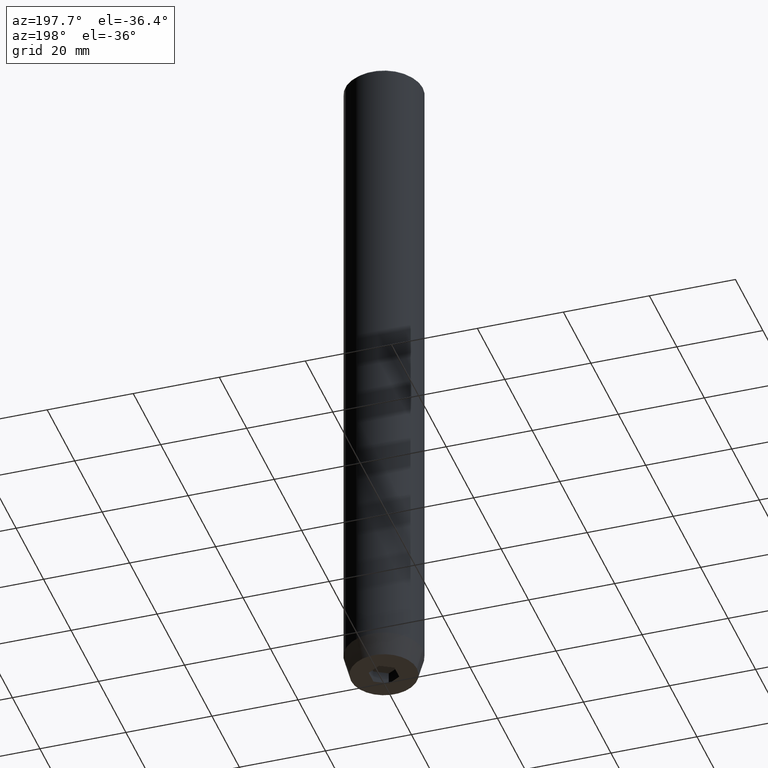
[diagram: clean part render]
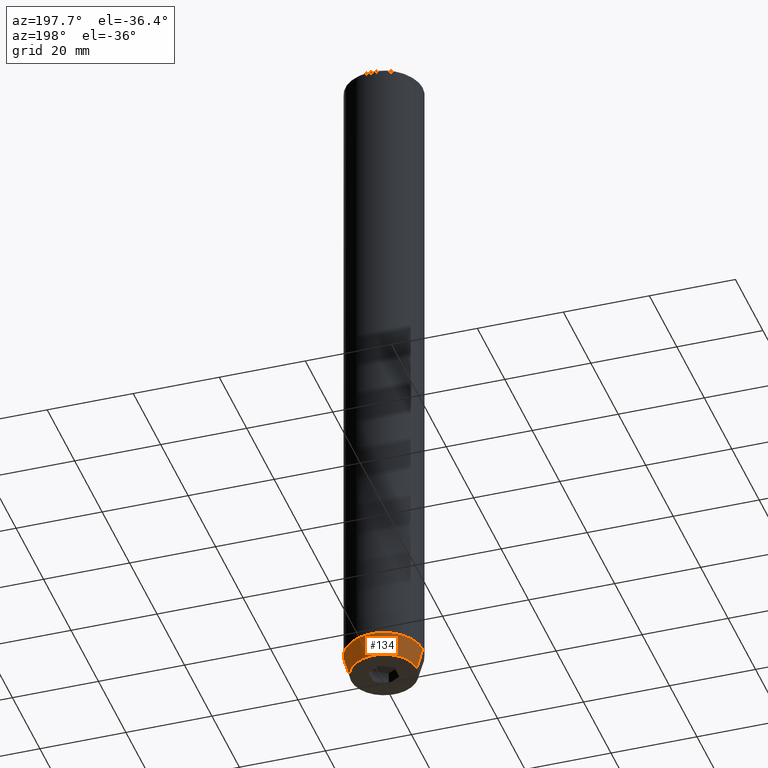
[diagram: same view with one face highlighted and labeled with its STEP entity id]
A machine part, auxiliary view. The second image highlights one B-rep face of the part: STEP entity #134.
In plain terms, the highlighted conical surface has half-angle 15 deg.
Its self-contained STEP definition (entity closure, byte-faithful):
#25 = CARTESIAN_POINT ( 'NONE',  ( -9.000000000000000000, 1.102182119232617714E-15, -154.9999999999999716 ) ) ;
#41 = EDGE_CURVE ( 'NONE', #577, #163, #454, .T. ) ;
#46 = DIRECTION ( 'NONE',  ( 1.000000000000000000, 0.000000000000000000, 0.000000000000000000 ) ) ;
#49 = CARTESIAN_POINT ( 'NONE',  ( -7.660254037844373087, 1.020146339021393680E-15, -160.0000000000000000 ) ) ;
#50 = CARTESIAN_POINT ( 'NONE',  ( 0.000000000000000000, 0.000000000000000000, -154.9999999999999716 ) ) ;
#51 = AXIS2_PLACEMENT_3D ( 'NONE', #55, #459, #545 ) ;
#55 = CARTESIAN_POINT ( 'NONE',  ( 0.000000000000000000, 0.000000000000000000, -160.0000000000000000 ) ) ;
#90 = ORIENTED_EDGE ( 'NONE', *, *, #504, .T. ) ;
#96 = AXIS2_PLACEMENT_3D ( 'NONE', #506, #242, #46 ) ;
#97 = CARTESIAN_POINT ( 'NONE',  ( 9.000000000000000000, 0.000000000000000000, -154.9999999999999716 ) ) ;
#125 = VERTEX_POINT ( 'NONE', #321 ) ;
#134 = ADVANCED_FACE ( 'NONE', ( #323 ), #406, .T. ) ;
#163 = VERTEX_POINT ( 'NONE', #427 ) ;
#176 = ORIENTED_EDGE ( 'NONE', *, *, #325, .T. ) ;
#205 = CARTESIAN_POINT ( 'NONE',  ( 9.000000000000000000, 0.000000000000000000, -154.9999999999999716 ) ) ;
#218 = EDGE_LOOP ( 'NONE', ( #90, #176, #305, #495 ) ) ;
#236 = DIRECTION ( 'NONE',  ( -0.000000000000000000, -0.000000000000000000, 1.000000000000000000 ) ) ;
#242 = DIRECTION ( 'NONE',  ( -0.000000000000000000, -0.000000000000000000, 1.000000000000000000 ) ) ;
#275 = EDGE_CURVE ( 'NONE', #125, #577, #557, .T. ) ;
#283 = VECTOR ( 'NONE', #334, 1000.000000000000000 ) ;
#299 = LINE ( 'NONE', #25, #494 ) ;
#305 = ORIENTED_EDGE ( 'NONE', *, *, #41, .F. ) ;
#321 = CARTESIAN_POINT ( 'NONE',  ( 7.660254037844373087, 0.000000000000000000, -160.0000000000000000 ) ) ;
#323 = FACE_OUTER_BOUND ( 'NONE', #218, .T. ) ;
#325 = EDGE_CURVE ( 'NONE', #517, #163, #299, .T. ) ;
#334 = DIRECTION ( 'NONE',  ( 0.2588190451025214056, 0.000000000000000000, 0.9659258262890680902 ) ) ;
#336 = CIRCLE ( 'NONE', #51, 7.660254037844373087 ) ;
#406 = CONICAL_SURFACE ( 'NONE', #544, 9.000000000000000000, 0.2617993877991501295 ) ;
#417 = DIRECTION ( 'NONE',  ( 1.000000000000000000, 0.000000000000000000, 0.000000000000000000 ) ) ;
#427 = CARTESIAN_POINT ( 'NONE',  ( -9.000000000000000000, 1.102182119232617714E-15, -154.9999999999999716 ) ) ;
#454 = CIRCLE ( 'NONE', #96, 9.000000000000000000 ) ;
#459 = DIRECTION ( 'NONE',  ( -0.000000000000000000, -0.000000000000000000, 1.000000000000000000 ) ) ;
#494 = VECTOR ( 'NONE', #499, 1000.000000000000000 ) ;
#495 = ORIENTED_EDGE ( 'NONE', *, *, #275, .F. ) ;
#499 = DIRECTION ( 'NONE',  ( -0.2588190451025214056, 3.169619151431772953E-17, 0.9659258262890680902 ) ) ;
#504 = EDGE_CURVE ( 'NONE', #125, #517, #336, .T. ) ;
#506 = CARTESIAN_POINT ( 'NONE',  ( 0.000000000000000000, 0.000000000000000000, -154.9999999999999716 ) ) ;
#517 = VERTEX_POINT ( 'NONE', #49 ) ;
#544 = AXIS2_PLACEMENT_3D ( 'NONE', #50, #236, #417 ) ;
#545 = DIRECTION ( 'NONE',  ( 1.000000000000000000, 0.000000000000000000, 0.000000000000000000 ) ) ;
#557 = LINE ( 'NONE', #205, #283 ) ;
#577 = VERTEX_POINT ( 'NONE', #97 ) ;